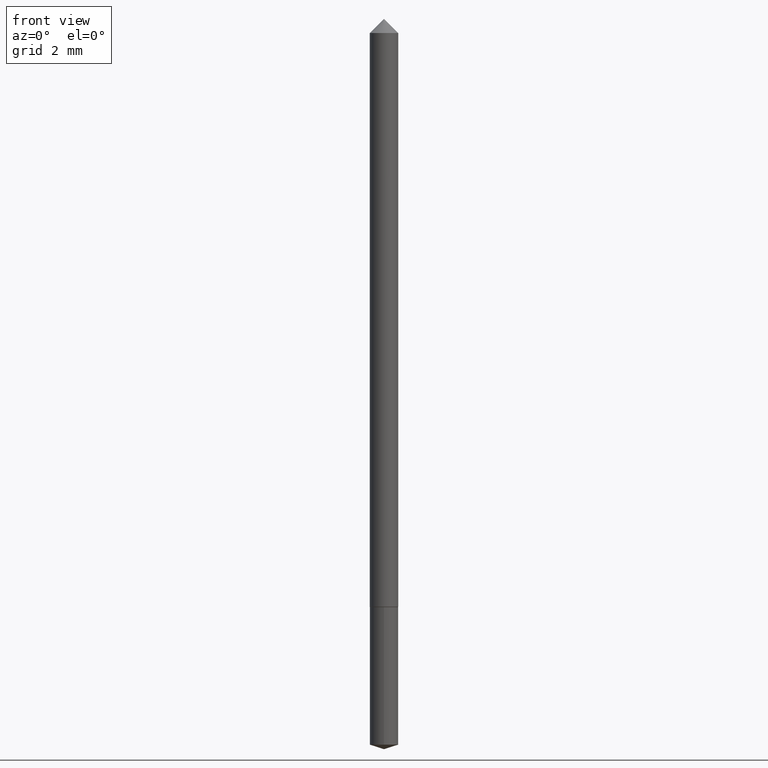
[diagram: clean part render]
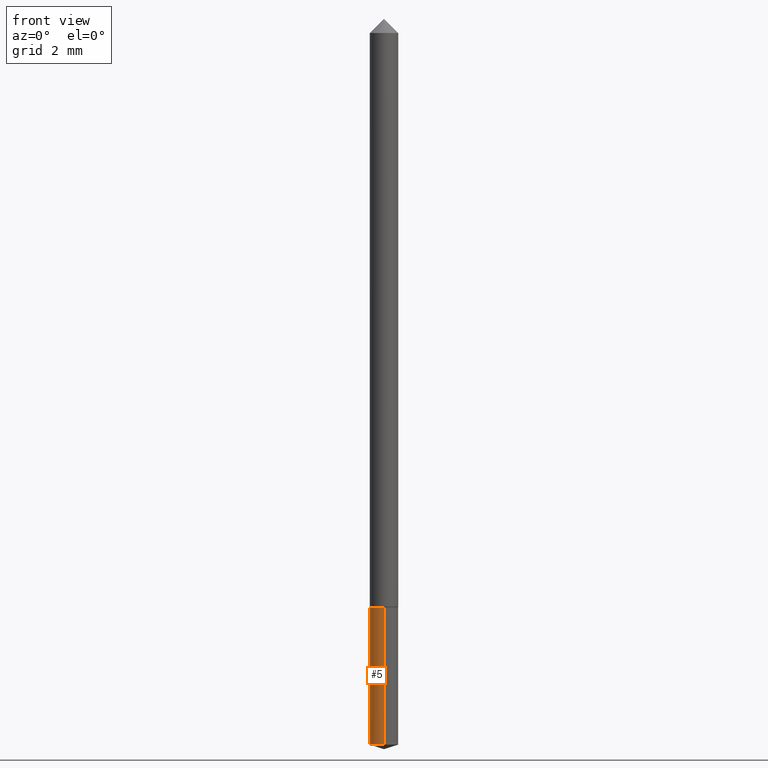
[diagram: same view with one face highlighted and labeled with its STEP entity id]
A machine part, front view. The second image highlights one B-rep face of the part: STEP entity #5.
In plain terms, the highlighted cylindrical surface (edge-blend (fillet) strip) has radius 0.5004 mm, axis along (-0, 0, 1).
Its self-contained STEP definition (entity closure, byte-faithful):
#5 = ADVANCED_FACE ( 'NONE', ( #355 ), #168, .T. ) ;
#8 = VERTEX_POINT ( 'NONE', #210 ) ;
#28 = ORIENTED_EDGE ( 'NONE', *, *, #176, .T. ) ;
#29 = EDGE_CURVE ( 'NONE', #101, #8, #68, .T. ) ;
#40 = DIRECTION ( 'NONE',  ( -2.445361441338074995E-29, 3.491635091414965380E-15, 1.000000000000000000 ) ) ;
#68 = LINE ( 'NONE', #293, #263 ) ;
#82 = ORIENTED_EDGE ( 'NONE', *, *, #361, .F. ) ;
#99 = CARTESIAN_POINT ( 'NONE',  ( 2.487971656442946993E-29, -3.552222663130027981E-15, -1.017388613859084190 ) ) ;
#101 = VERTEX_POINT ( 'NONE', #256 ) ;
#109 = AXIS2_PLACEMENT_3D ( 'NONE', #240, #167, #247 ) ;
#110 = VERTEX_POINT ( 'NONE', #227 ) ;
#111 = CARTESIAN_POINT ( 'NONE',  ( 1.399769189447645769E-16, 0.01969999999999711218, -0.8268000000000002014 ) ) ;
#145 = DIRECTION ( 'NONE',  ( -6.982962677686265133E-15, -1.000000000000000000, 6.933624349401683764E-15 ) ) ;
#157 = DIRECTION ( 'NONE',  ( -2.445361441338074995E-29, 3.491635091414965774E-15, 1.000000000000000000 ) ) ;
#167 = DIRECTION ( 'NONE',  ( -2.445361441338074995E-29, 3.491635091414965380E-15, 1.000000000000000000 ) ) ;
#168 = CYLINDRICAL_SURFACE ( 'NONE', #189, 0.01969999999999999876 ) ;
#176 = EDGE_CURVE ( 'NONE', #110, #101, #353, .T. ) ;
#189 = AXIS2_PLACEMENT_3D ( 'NONE', #217, #278, #351 ) ;
#210 = CARTESIAN_POINT ( 'NONE',  ( -1.375643647503991970E-16, -0.01970000000000288187, -0.8267999999999998684 ) ) ;
#217 = CARTESIAN_POINT ( 'NONE',  ( 2.021913608953870993E-29, -2.886756770955512686E-15, -0.8268000000000000904 ) ) ;
#221 = ORIENTED_EDGE ( 'NONE', *, *, #265, .F. ) ;
#225 = AXIS2_PLACEMENT_3D ( 'NONE', #99, #40, #145 ) ;
#227 = CARTESIAN_POINT ( 'NONE',  ( 1.399769189447645276E-16, 0.01969999999999644258, -1.017388613859084412 ) ) ;
#240 = CARTESIAN_POINT ( 'NONE',  ( 2.021913608953870993E-29, -2.886756770955512686E-15, -0.8268000000000000904 ) ) ;
#247 = DIRECTION ( 'NONE',  ( -6.982962677686265133E-15, -1.000000000000000000, 6.933624349401683764E-15 ) ) ;
#256 = CARTESIAN_POINT ( 'NONE',  ( -1.375643647503945132E-16, -0.01970000000000354454, -1.017388613859084190 ) ) ;
#262 = EDGE_LOOP ( 'NONE', ( #221, #28, #357, #82 ) ) ;
#263 = VECTOR ( 'NONE', #264, 39.37007874015748143 ) ;
#264 = DIRECTION ( 'NONE',  ( -2.445361441338074995E-29, 3.491635091414965774E-15, 1.000000000000000000 ) ) ;
#265 = EDGE_CURVE ( 'NONE', #110, #336, #266, .T. ) ;
#266 = LINE ( 'NONE', #349, #344 ) ;
#278 = DIRECTION ( 'NONE',  ( -2.445361441338074995E-29, 3.491635091414965380E-15, 1.000000000000000000 ) ) ;
#293 = CARTESIAN_POINT ( 'NONE',  ( -1.375643647503991970E-16, -0.01970000000000288187, -0.8267999999999998684 ) ) ;
#336 = VERTEX_POINT ( 'NONE', #111 ) ;
#344 = VECTOR ( 'NONE', #157, 39.37007874015748143 ) ;
#349 = CARTESIAN_POINT ( 'NONE',  ( 1.399769189447599177E-16, 0.01969999999999711218, -0.8268000000000002014 ) ) ;
#351 = DIRECTION ( 'NONE',  ( -6.982962677686265133E-15, -1.000000000000000000, 6.933624349401683764E-15 ) ) ;
#353 = CIRCLE ( 'NONE', #225, 0.01969999999999999876 ) ;
#355 = FACE_OUTER_BOUND ( 'NONE', #262, .T. ) ;
#357 = ORIENTED_EDGE ( 'NONE', *, *, #29, .T. ) ;
#361 = EDGE_CURVE ( 'NONE', #336, #8, #363, .T. ) ;
#363 = CIRCLE ( 'NONE', #109, 0.01969999999999999876 ) ;